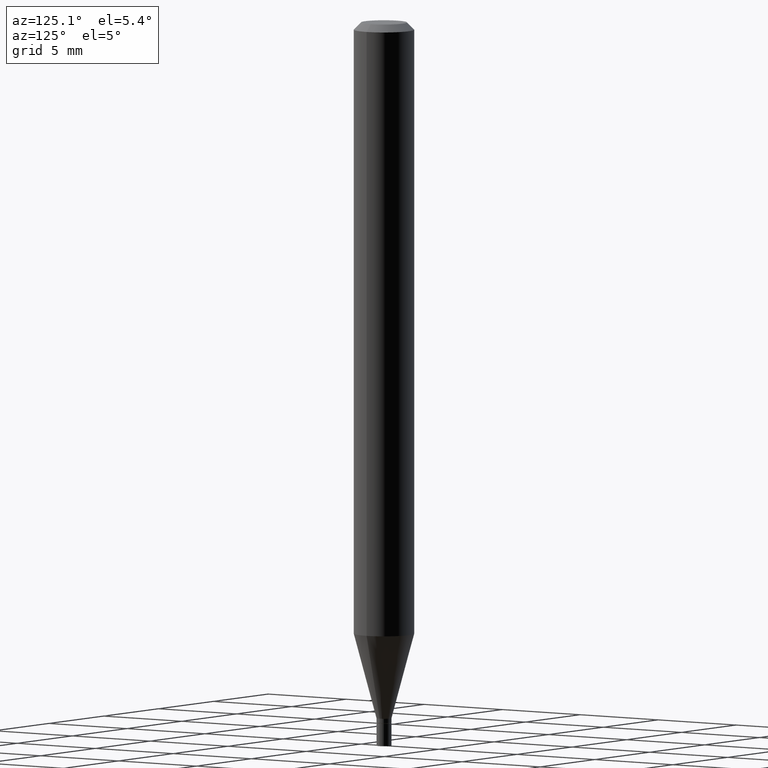
[diagram: clean part render]
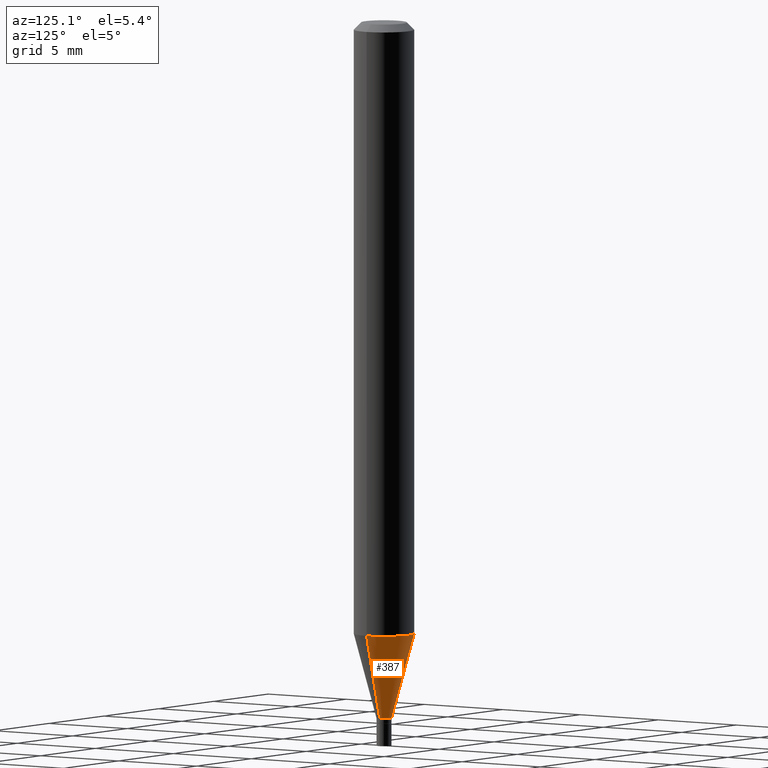
[diagram: same view with one face highlighted and labeled with its STEP entity id]
A machine part, auxiliary view. The second image highlights one B-rep face of the part: STEP entity #387.
In plain terms, the highlighted conical surface has half-angle 15 deg.
Its self-contained STEP definition (entity closure, byte-faithful):
#13 = VERTEX_POINT ( 'NONE', #165 ) ;
#29 = VECTOR ( 'NONE', #189, 39.37007874015748854 ) ;
#42 = CARTESIAN_POINT ( 'NONE',  ( -0.06250000000000000000, -3.981690231839260141E-15, -1.267593612044263018 ) ) ;
#51 = CARTESIAN_POINT ( 'NONE',  ( -0.01549999999999992183, -4.454881839873552684E-15, -1.443000000000000060 ) ) ;
#74 = CARTESIAN_POINT ( 'NONE',  ( 3.528811487325152432E-29, -5.038207571950659670E-15, -1.443000000000000060 ) ) ;
#105 = FACE_OUTER_BOUND ( 'NONE', #451, .T. ) ;
#111 = DIRECTION ( 'NONE',  ( 1.000000000000000000, -6.982962677686273810E-15, 0.000000000000000000 ) ) ;
#120 = DIRECTION ( 'NONE',  ( -2.445468806185136597E-29, 3.491481338843145583E-15, 1.000000000000000000 ) ) ;
#138 = EDGE_CURVE ( 'NONE', #460, #279, #463, .T. ) ;
#165 = CARTESIAN_POINT ( 'NONE',  ( 0.01549999999999992183, -5.146443493454796047E-15, -1.443000000000000060 ) ) ;
#189 = DIRECTION ( 'NONE',  ( 0.2588190451025212391, 1.565188264969622362E-15, 0.9659258262890679791 ) ) ;
#210 = CARTESIAN_POINT ( 'NONE',  ( -0.01549999999999992183, -4.928073447907845227E-15, -1.443000000000000060 ) ) ;
#227 = LINE ( 'NONE', #333, #29 ) ;
#229 = DIRECTION ( 'NONE',  ( 1.000000000000000000, -6.982962677686262766E-15, 0.000000000000000000 ) ) ;
#237 = AXIS2_PLACEMENT_3D ( 'NONE', #376, #120, #403 ) ;
#239 = ORIENTED_EDGE ( 'NONE', *, *, #394, .T. ) ;
#279 = VERTEX_POINT ( 'NONE', #42 ) ;
#301 = DIRECTION ( 'NONE',  ( -2.445468806185136597E-29, 3.491481338843145583E-15, 1.000000000000000000 ) ) ;
#307 = AXIS2_PLACEMENT_3D ( 'NONE', #74, #441, #111 ) ;
#324 = CONICAL_SURFACE ( 'NONE', #237, 0.01549999999999992183, 0.2617993877991499629 ) ;
#332 = CARTESIAN_POINT ( 'NONE',  ( 3.099860637173788860E-29, -4.425779441689322757E-15, -1.267593612044263018 ) ) ;
#333 = CARTESIAN_POINT ( 'NONE',  ( 0.01549999999999992183, -5.146443493454796047E-15, -1.443000000000000060 ) ) ;
#338 = EDGE_CURVE ( 'NONE', #13, #460, #227, .T. ) ;
#339 = CARTESIAN_POINT ( 'NONE',  ( 0.06250000000000000000, -4.862214609044713638E-15, -1.267593612044263018 ) ) ;
#359 = DIRECTION ( 'NONE',  ( -0.2588190451025212391, 5.211531920934549464E-15, 0.9659258262890679791 ) ) ;
#363 = VERTEX_POINT ( 'NONE', #51 ) ;
#365 = ORIENTED_EDGE ( 'NONE', *, *, #338, .F. ) ;
#372 = VECTOR ( 'NONE', #359, 39.37007874015748854 ) ;
#376 = CARTESIAN_POINT ( 'NONE',  ( 3.528811487325152432E-29, -5.038207571950659670E-15, -1.443000000000000060 ) ) ;
#384 = CIRCLE ( 'NONE', #307, 0.01549999999999992183 ) ;
#387 = ADVANCED_FACE ( 'NONE', ( #105 ), #324, .T. ) ;
#390 = AXIS2_PLACEMENT_3D ( 'NONE', #332, #301, #229 ) ;
#394 = EDGE_CURVE ( 'NONE', #13, #363, #384, .T. ) ;
#398 = LINE ( 'NONE', #210, #372 ) ;
#403 = DIRECTION ( 'NONE',  ( 1.000000000000000000, -6.982962677686273810E-15, 0.000000000000000000 ) ) ;
#421 = EDGE_CURVE ( 'NONE', #363, #279, #398, .T. ) ;
#441 = DIRECTION ( 'NONE',  ( -2.445468806185136597E-29, 3.491481338843145583E-15, 1.000000000000000000 ) ) ;
#451 = EDGE_LOOP ( 'NONE', ( #239, #459, #465, #365 ) ) ;
#459 = ORIENTED_EDGE ( 'NONE', *, *, #421, .T. ) ;
#460 = VERTEX_POINT ( 'NONE', #339 ) ;
#463 = CIRCLE ( 'NONE', #390, 0.06250000000000000000 ) ;
#465 = ORIENTED_EDGE ( 'NONE', *, *, #138, .F. ) ;